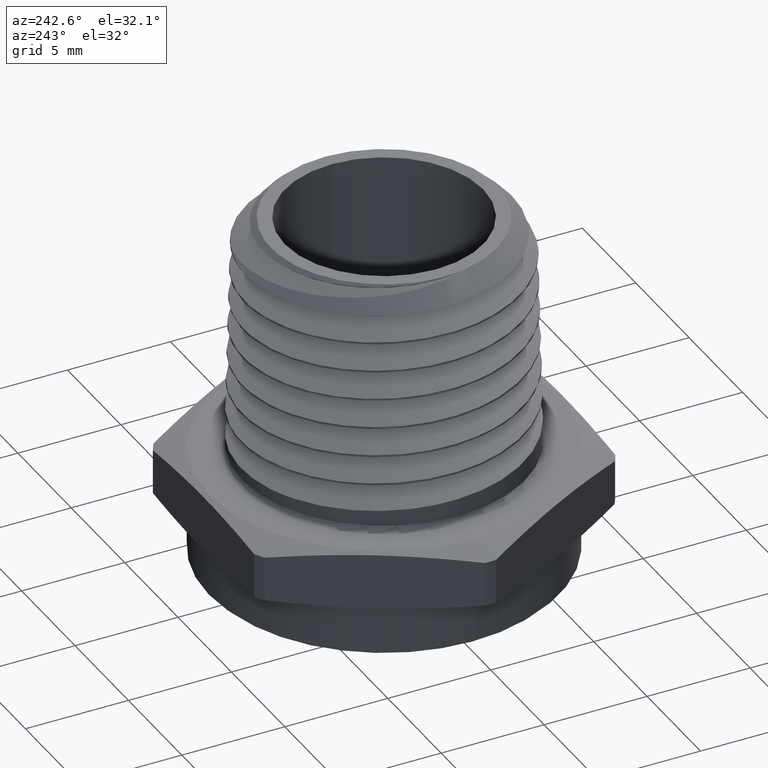
[diagram: clean part render]
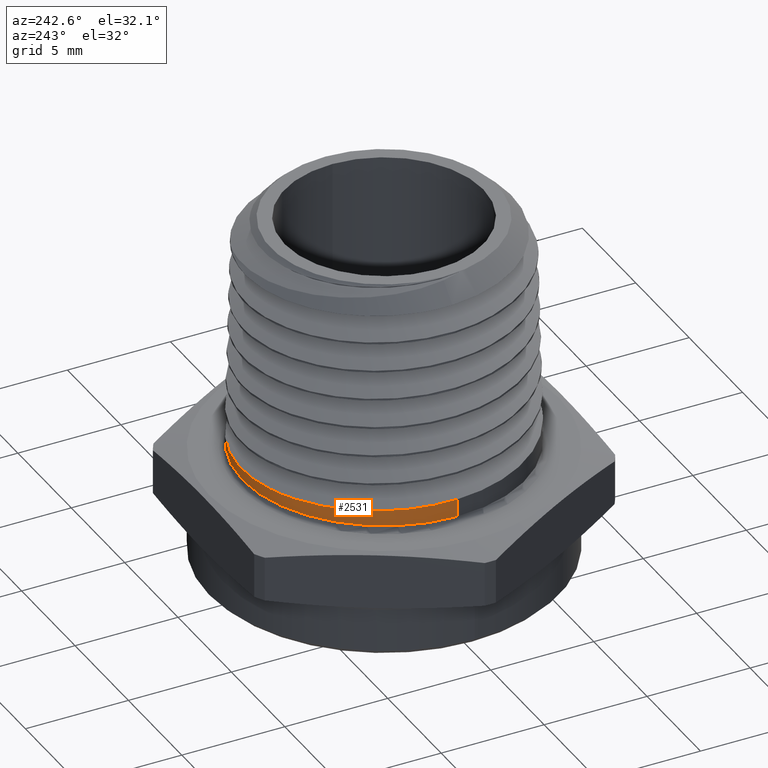
[diagram: same view with one face highlighted and labeled with its STEP entity id]
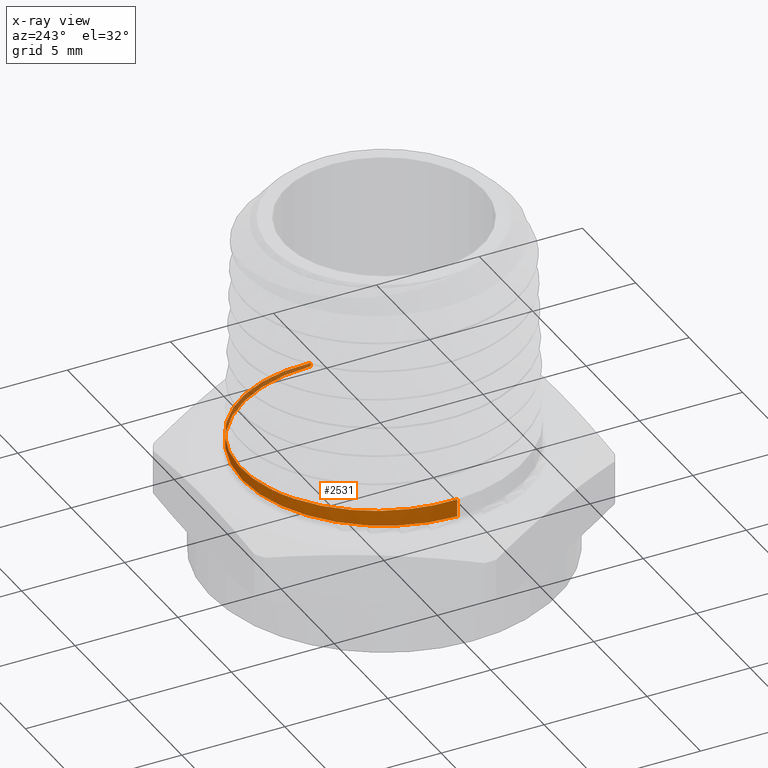
[diagram: x-ray of the same camera — body ghosted, the highlighted face saturated]
A machine part, auxiliary view. The second image highlights one B-rep face of the part: STEP entity #2531.
The next image is the same camera in x-ray: the body ghosted, the highlighted face saturated — about 11% of this face is hidden behind the body in this view.
In plain terms, the highlighted cylindrical surface (partial cylindrical patch) has radius 6.858 mm, axis along (-0, -0, -1).
Its self-contained STEP definition (entity closure, byte-faithful):
#907 = DIRECTION ( 'NONE',  ( -1.000000000000000000, 0.0000000000000000000, 0.0000000000000000000 ) ) ;
#908 = CARTESIAN_POINT ( 'NONE',  ( 0.0000000000000000000, 0.0000000000000000000, 0.5699999999999999500 ) ) ;
#909 = DIRECTION ( 'NONE',  ( -0.0000000000000000000, -0.0000000000000000000, -1.000000000000000000 ) ) ;
#1077 = CARTESIAN_POINT ( 'NONE',  ( 0.2700000000000000200, 3.306546357697853700E-017, 0.1200000000000000200 ) ) ;
#1113 = CARTESIAN_POINT ( 'NONE',  ( -0.2700000000000000200, 0.0000000000000000000, 0.1200000000000000200 ) ) ;
#1258 = AXIS2_PLACEMENT_3D ( 'NONE', #1880, #1881, #1882 ) ;
#1298 = AXIS2_PLACEMENT_3D ( 'NONE', #908, #909, #907 ) ;
#1373 = FACE_OUTER_BOUND ( 'NONE', #2702, .T. ) ;
#1539 = ORIENTED_EDGE ( 'NONE', *, *, #1625, .F. ) ;
#1540 = ORIENTED_EDGE ( 'NONE', *, *, #1626, .T. ) ;
#1541 = ORIENTED_EDGE ( 'NONE', *, *, #1627, .T. ) ;
#1542 = ORIENTED_EDGE ( 'NONE', *, *, #1628, .F. ) ;
#1625 = EDGE_CURVE ( 'NONE', #1765, #1768, #2667, .T. ) ;
#1626 = EDGE_CURVE ( 'NONE', #1765, #4984, #2467, .T. ) ;
#1627 = EDGE_CURVE ( 'NONE', #4984, #5012, #2464, .T. ) ;
#1628 = EDGE_CURVE ( 'NONE', #1768, #5012, #2469, .T. ) ;
#1765 = VERTEX_POINT ( 'NONE', #2321 ) ;
#1768 = VERTEX_POINT ( 'NONE', #2324 ) ;
#1804 = DIRECTION ( 'NONE',  ( -0.0000000000000000000, -0.0000000000000000000, -1.000000000000000000 ) ) ;
#1830 = CARTESIAN_POINT ( 'NONE',  ( 0.2700000000000000200, 0.01783445152731886000, 0.1274269384289741800 ) ) ;
#1834 = CARTESIAN_POINT ( 'NONE',  ( 0.2682502563384419100, 0.03537138067886663000, 0.1279835175848952600 ) ) ;
#1835 = CARTESIAN_POINT ( 'NONE',  ( 0.2631085261991488700, 0.06124734353834508000, 0.1288346710481226600 ) ) ;
#1836 = CARTESIAN_POINT ( 'NONE',  ( 0.2609719895884684000, 0.06980058264910780900, 0.1291205109961278400 ) ) ;
#1837 = CARTESIAN_POINT ( 'NONE',  ( 0.2558344603213222300, 0.08675960811354765900, 0.1296969540593431200 ) ) ;
#1838 = CARTESIAN_POINT ( 'NONE',  ( 0.2528188307303880800, 0.09518884875942464100, 0.1299884193214418700 ) ) ;
#1839 = CARTESIAN_POINT ( 'NONE',  ( 0.2426577475059554000, 0.1197093562568807100, 0.1308447916443683500 ) ) ;
#1840 = CARTESIAN_POINT ( 'NONE',  ( 0.2343669510351274700, 0.1352158726190569300, 0.1313998592707439100 ) ) ;
#1841 = CARTESIAN_POINT ( 'NONE',  ( 0.2147805341364444300, 0.1645616057946034100, 0.1325381074111930100 ) ) ;
#1842 = CARTESIAN_POINT ( 'NONE',  ( 0.2033796956324514500, 0.1784568891828842200, 0.1331249872874615000 ) ) ;
#1843 = CARTESIAN_POINT ( 'NONE',  ( 0.1784744722225370700, 0.2033642659300488600, 0.1342614743186101000 ) ) ;
#1844 = CARTESIAN_POINT ( 'NONE',  ( 0.1648854460068792400, 0.2145408775478474500, 0.1348168728827416100 ) ) ;
#1845 = CARTESIAN_POINT ( 'NONE',  ( 0.1427583960047453800, 0.2293442608419148700, 0.1356757466267013700 ) ) ;
#1846 = CARTESIAN_POINT ( 'NONE',  ( 0.1350903001458070900, 0.2339416315203467500, 0.1359656919204895700 ) ) ;
#1847 = CARTESIAN_POINT ( 'NONE',  ( 0.1195055909079631600, 0.2422735848036770300, 0.1365407154947395300 ) ) ;
#1848 = CARTESIAN_POINT ( 'NONE',  ( 0.1035906053195423500, 0.2498008068791997300, 0.1371140563541170300 ) ) ;
#1849 = CARTESIAN_POINT ( 'NONE',  ( 0.08702490804668959500, 0.2557432891079883800, 0.1376753628090631200 ) ) ;
#1850 = CARTESIAN_POINT ( 'NONE',  ( 0.07012979715420855600, 0.2608826864615903500, 0.1382403279984579000 ) ) ;
#1851 = CARTESIAN_POINT ( 'NONE',  ( 0.06147438563975617100, 0.2630587177935809800, 0.1385260670990290100 ) ) ;
#1852 = CARTESIAN_POINT ( 'NONE',  ( 0.03532560583271919500, 0.2682686302207263900, 0.1393862719705688800 ) ) ;
#1853 = CARTESIAN_POINT ( 'NONE',  ( 0.01776996152224644800, 0.2699938980430859300, 0.1399623122440608900 ) ) ;
#1854 = CARTESIAN_POINT ( 'NONE',  ( -0.01758404679158295400, 0.2700060699529434600, 0.1411031102310830700 ) ) ;
#1855 = CARTESIAN_POINT ( 'NONE',  ( -0.03545093180093401900, 0.2682434125453591600, 0.1416699769316199000 ) ) ;
#1856 = CARTESIAN_POINT ( 'NONE',  ( -0.07005803201944460500, 0.2613487499283221900, 0.1428085096059334400 ) ) ;
#1857 = CARTESIAN_POINT ( 'NONE',  ( -0.08703200813992285900, 0.2562072555623227700, 0.1433877028999715500 ) ) ;
#1858 = CARTESIAN_POINT ( 'NONE',  ( -0.1199083582877399400, 0.2425669265509706200, 0.1445359959676083000 ) ) ;
#1859 = CARTESIAN_POINT ( 'NONE',  ( -0.1354263714337964900, 0.2342419649443941400, 0.1450919045714654200 ) ) ;
#1860 = CARTESIAN_POINT ( 'NONE',  ( -0.1573682204637789900, 0.2195737763104859100, 0.1459434661137436800 ) ) ;
#1861 = CARTESIAN_POINT ( 'NONE',  ( -0.1644580410881337800, 0.2143182696693027600, 0.1462296713347237300 ) ) ;
#1862 = CARTESIAN_POINT ( 'NONE',  ( -0.1781774791141261200, 0.2030555439507266100, 0.1468072408967734400 ) ) ;
#1863 = CARTESIAN_POINT ( 'NONE',  ( -0.1847973313768502000, 0.1970482417521814400, 0.1470983492866631500 ) ) ;
#1864 = CARTESIAN_POINT ( 'NONE',  ( -0.2035279334639228100, 0.1782936716387628100, 0.1479534526292354000 ) ) ;
#1865 = CARTESIAN_POINT ( 'NONE',  ( -0.2146769399322360800, 0.1646988692315013200, 0.1485084882366272700 ) ) ;
#1866 = CARTESIAN_POINT ( 'NONE',  ( -0.2293957849049994600, 0.1426728789364685400, 0.1493631881303135200 ) ) ;
#1867 = CARTESIAN_POINT ( 'NONE',  ( -0.2339870483908756100, 0.1350146533939669800, 0.1496527617789157000 ) ) ;
#1868 = CARTESIAN_POINT ( 'NONE',  ( -0.2423548061569774400, 0.1193442222245422600, 0.1502308026347015700 ) ) ;
#1869 = CARTESIAN_POINT ( 'NONE',  ( -0.2461231997872565200, 0.1113589157249599100, 0.1505183446227805500 ) ) ;
#1870 = CARTESIAN_POINT ( 'NONE',  ( -0.2562164072194421100, 0.08696495277631752200, 0.1513700617943435100 ) ) ;
#1871 = CARTESIAN_POINT ( 'NONE',  ( -0.2613407848404258900, 0.07012250413707329900, 0.1519257938527396000 ) ) ;
#1872 = CARTESIAN_POINT ( 'NONE',  ( -0.2682798121680995400, 0.03524363475172291600, 0.1530731614110630600 ) ) ;
#1873 = CARTESIAN_POINT ( 'NONE',  ( -0.2700000000000325500, 0.01758202900149022700, 0.1536526273707125300 ) ) ;
#1874 = CARTESIAN_POINT ( 'NONE',  ( -0.2699999999999999600, -5.001928457193992400E-013, 0.1542199171673591700 ) ) ;
#1875 = CARTESIAN_POINT ( 'NONE',  ( 0.2700000000000000200, 3.306546357697853700E-017, 0.5699999999999999500 ) ) ;
#1876 = CARTESIAN_POINT ( 'NONE',  ( -0.2700000000000000200, 0.0000000000000000000, 0.5699999999999999500 ) ) ;
#1877 = DIRECTION ( 'NONE',  ( -0.0000000000000000000, -0.0000000000000000000, -1.000000000000000000 ) ) ;
#1880 = CARTESIAN_POINT ( 'NONE',  ( 0.0000000000000000000, 0.0000000000000000000, 0.1200000000000000200 ) ) ;
#1881 = DIRECTION ( 'NONE',  ( -0.0000000000000000000, 0.0000000000000000000, 1.000000000000000000 ) ) ;
#1882 = DIRECTION ( 'NONE',  ( 1.000000000000000000, 0.0000000000000000000, 0.0000000000000000000 ) ) ;
#2321 = CARTESIAN_POINT ( 'NONE',  ( 0.2699999999999999600, 3.967855629237423000E-016, 0.1268515041418107600 ) ) ;
#2324 = CARTESIAN_POINT ( 'NONE',  ( -0.2699999999999999600, -5.001928457193992400E-013, 0.1542199171673591700 ) ) ;
#2464 = CIRCLE ( 'NONE', #1258, 0.2700000000000000200 ) ;
#2467 = LINE ( 'NONE', #1875, #2468 ) ;
#2468 = VECTOR ( 'NONE', #1877, 39.37007874015748100 ) ;
#2469 = LINE ( 'NONE', #1876, #2471 ) ;
#2471 = VECTOR ( 'NONE', #1804, 39.37007874015748100 ) ;
#2531 = ADVANCED_FACE ( 'NONE', ( #1373 ), #4643, .T. ) ;
#2667 = B_SPLINE_CURVE_WITH_KNOTS ( 'NONE', 3,
 ( #4009, #1830, #1834, #1835, #1836, #1837, #1838, #1839, #1840, #1841, #1842, #1843, #1844, #1845, #1846, #1847, #1848, #1849, #1850, #1851, #1852, #1853, #1854, #1855, #1856, #1857, #1858, #1859, #1860, #1861, #1862, #1863, #1864, #1865, #1866, #1867, #1868, #1869, #1870, #1871, #1872, #1873, #1874 ),
 .UNSPECIFIED., .F., .F.,
 ( 4, 2, 2, 2, 2, 2, 2, 2, 1, 2, 2, 2, 2, 2, 2, 2, 2, 2, 2, 2, 2, 4 ),
 ( 3.414742822735800700E-018, 0.001340394002137012100, 0.002010591003205517000, 0.002680788004274021600, 0.004021182006411029600, 0.005361576008548037100, 0.006701970010685045500, 0.007372167011753549300, 0.008042364012822053900, 0.008712561013890557700, 0.009382758014959063200, 0.01072315201709607100, 0.01206354601923307800, 0.01340394002137008800, 0.01474433402350709500, 0.01541453102457559900, 0.01608472802564410100, 0.01742512202778110800, 0.01809531902884961200, 0.01876551602991811300, 0.02010591003205512000, 0.02144630403419212400 ),
 .UNSPECIFIED. ) ;
#2702 = EDGE_LOOP ( 'NONE', ( #1539, #1540, #1541, #1542 ) ) ;
#4009 = CARTESIAN_POINT ( 'NONE',  ( 0.2699999999999999600, 3.967855629237423000E-016, 0.1268515041418107600 ) ) ;
#4643 = CYLINDRICAL_SURFACE ( 'NONE', #1298, 0.2700000000000000200 ) ;
#4984 = VERTEX_POINT ( 'NONE', #1077 ) ;
#5012 = VERTEX_POINT ( 'NONE', #1113 ) ;